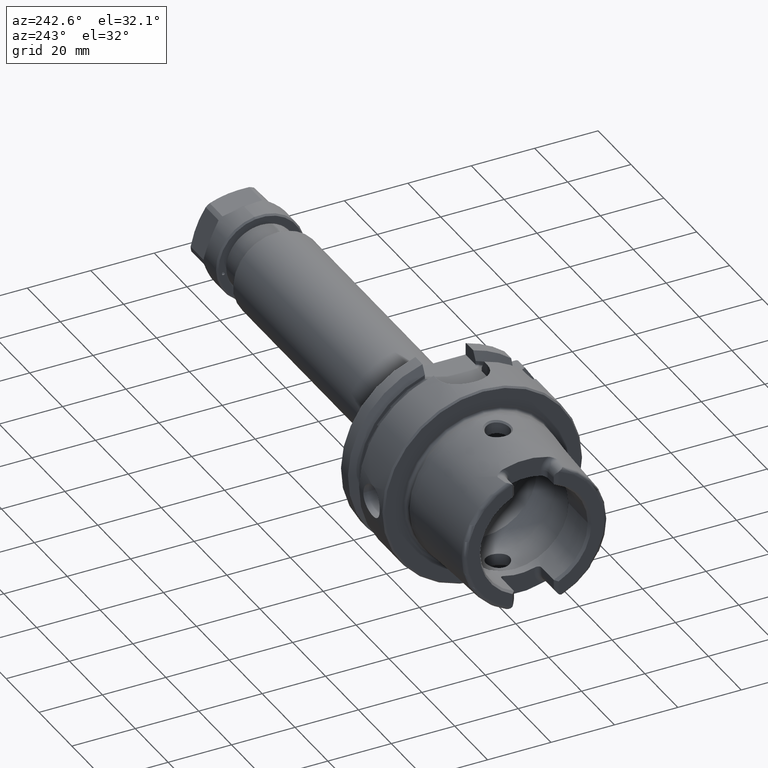
[diagram: clean part render]
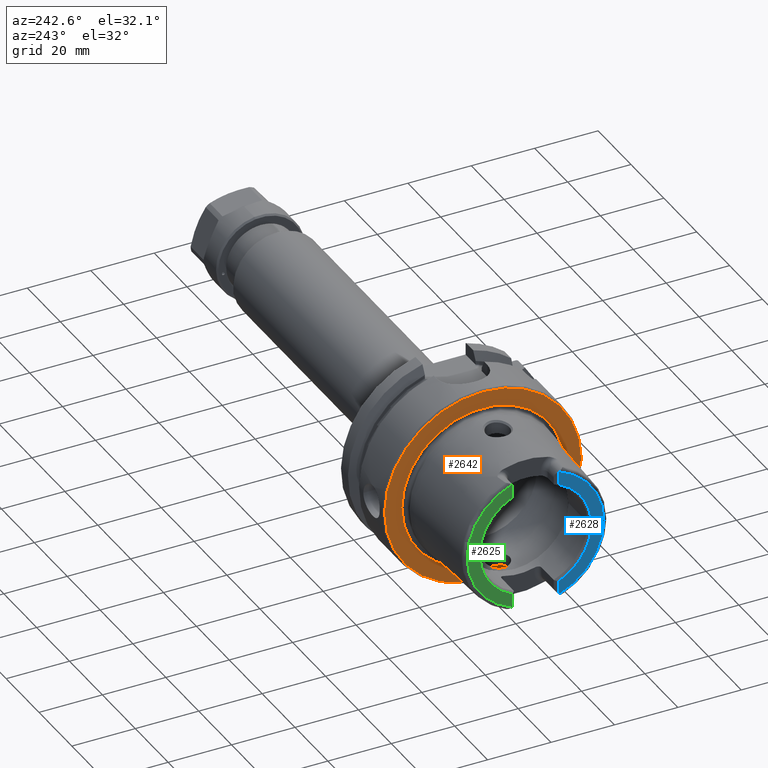
[diagram: same view with three faces highlighted in distinct colors, each labeled with its STEP entity id]
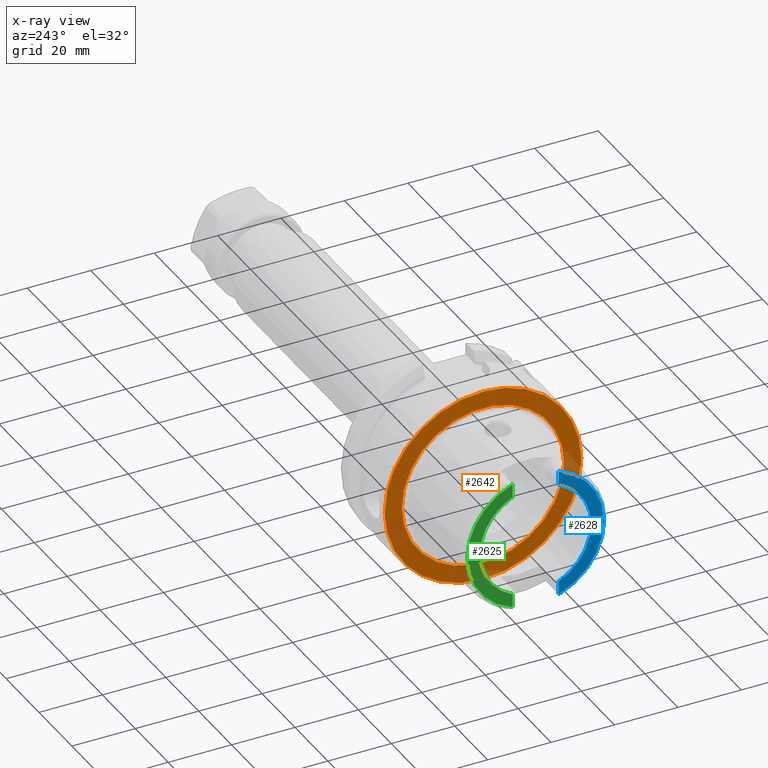
[diagram: x-ray of the same camera — body ghosted, the three highlighted faces saturated]
A machine part, auxiliary view with three faces highlighted in distinct colors.
The next image is the same camera in x-ray (body ghosted, the three faces saturated) — at least one of them is partly hidden behind the body in this view.
Their STEP definitions:

[orange] entity #2642 — the highlighted planar face has unit normal (-1, 0, 0).
#162=FACE_BOUND('',#530,.T.);
#210=PLANE('',#2992);
#366=FACE_OUTER_BOUND('',#529,.T.);
#529=EDGE_LOOP('',(#2302));
#530=EDGE_LOOP('',(#2303));
#991=CIRCLE('',#2991,25.5879092835167);
#992=CIRCLE('',#2993,31.);
#1228=VERTEX_POINT('',#5335);
#1229=VERTEX_POINT('',#5339);
#1596=EDGE_CURVE('',#1228,#1228,#991,.T.);
#1597=EDGE_CURVE('',#1229,#1229,#992,.T.);
#2302=ORIENTED_EDGE('',*,*,#1597,.F.);
#2303=ORIENTED_EDGE('',*,*,#1596,.T.);
#2642=ADVANCED_FACE('',(#366,#162),#210,.T.);
#2991=AXIS2_PLACEMENT_3D('',#5337,#3673,#3674);
#2992=AXIS2_PLACEMENT_3D('',#5338,#3675,#3676);
#2993=AXIS2_PLACEMENT_3D('',#5340,#3677,#3678);
#3673=DIRECTION('center_axis',(1.,0.,0.));
#3674=DIRECTION('ref_axis',(0.,0.,-1.));
#3675=DIRECTION('center_axis',(-1.,0.,0.));
#3676=DIRECTION('ref_axis',(0.,0.,1.));
#3677=DIRECTION('center_axis',(1.,0.,0.));
#3678=DIRECTION('ref_axis',(0.,0.,-1.));
#5335=CARTESIAN_POINT('',(-3.55618312575245E-16,-25.5879092835167,-3.13361512009315E-15));
#5337=CARTESIAN_POINT('Origin',(0.,0.,0.));
#5338=CARTESIAN_POINT('Origin',(0.,31.,0.));
#5339=CARTESIAN_POINT('',(-5.89805981832114E-16,-31.,-3.7964050773568E-15));
#5340=CARTESIAN_POINT('Origin',(0.,0.,0.));

[blue] entity #2628 — the highlighted planar face has unit normal (-1, 0, 0).
#206=PLANE('',#2959);
#352=FACE_OUTER_BOUND('',#512,.T.);
#512=EDGE_LOOP('',(#2238,#2239,#2240,#2241,#2242,#2243));
#592=LINE('',#3983,#738);
#605=LINE('',#4096,#751);
#738=VECTOR('',#3187,10.);
#751=VECTOR('',#3234,10.);
#896=CIRCLE('',#2796,2.88);
#900=CIRCLE('',#2811,2.88);
#973=CIRCLE('',#2960,21.5760400159857);
#974=CIRCLE('',#2961,17.5773502691896);
#1060=VERTEX_POINT('',#3980);
#1061=VERTEX_POINT('',#3982);
#1068=VERTEX_POINT('',#4015);
#1081=VERTEX_POINT('',#4089);
#1084=VERTEX_POINT('',#4094);
#1087=VERTEX_POINT('',#4104);
#1332=EDGE_CURVE('',#1060,#1061,#592,.T.);
#1341=EDGE_CURVE('',#1060,#1068,#896,.T.);
#1360=EDGE_CURVE('',#1084,#1081,#605,.T.);
#1364=EDGE_CURVE('',#1087,#1081,#900,.T.);
#1573=EDGE_CURVE('',#1087,#1068,#973,.T.);
#1574=EDGE_CURVE('',#1061,#1084,#974,.T.);
#2238=ORIENTED_EDGE('',*,*,#1332,.F.);
#2239=ORIENTED_EDGE('',*,*,#1341,.T.);
#2240=ORIENTED_EDGE('',*,*,#1573,.F.);
#2241=ORIENTED_EDGE('',*,*,#1364,.T.);
#2242=ORIENTED_EDGE('',*,*,#1360,.F.);
#2243=ORIENTED_EDGE('',*,*,#1574,.F.);
#2628=ADVANCED_FACE('',(#352),#206,.T.);
#2796=AXIS2_PLACEMENT_3D('',#4028,#3199,#3200);
#2811=AXIS2_PLACEMENT_3D('',#4105,#3242,#3243);
#2959=AXIS2_PLACEMENT_3D('',#5286,#3604,#3605);
#2960=AXIS2_PLACEMENT_3D('',#5287,#3606,#3607);
#2961=AXIS2_PLACEMENT_3D('',#5288,#3608,#3609);
#3187=DIRECTION('',(0.,0.,1.));
#3199=DIRECTION('center_axis',(-1.,0.,0.));
#3200=DIRECTION('ref_axis',(0.,-1.,0.));
#3234=DIRECTION('',(0.,1.58830189502884E-16,1.));
#3242=DIRECTION('center_axis',(-1.,0.,0.));
#3243=DIRECTION('ref_axis',(0.,0.453346760926795,-0.891334232685576));
#3604=DIRECTION('center_axis',(-1.,0.,0.));
#3605=DIRECTION('ref_axis',(0.,0.,1.));
#3606=DIRECTION('center_axis',(1.,0.,0.));
#3607=DIRECTION('ref_axis',(0.,0.,-1.));
#3608=DIRECTION('center_axis',(-1.,0.,0.));
#3609=DIRECTION('ref_axis',(0.,-1.,0.));
#3980=CARTESIAN_POINT('',(-32.,-7.27,-20.1717424229271));
#3982=CARTESIAN_POINT('',(-32.,-7.27,-16.003447831195));
#3983=CARTESIAN_POINT('',(-32.,-7.27,-8.995));
#4015=CARTESIAN_POINT('',(-32.,-7.39118810947246,-20.2705658801576));
#4028=CARTESIAN_POINT('Origin',(-32.,-9.15,-17.99));
#4089=CARTESIAN_POINT('',(-32.,-7.26999999999999,20.1717424229271));
#4094=CARTESIAN_POINT('',(-32.,-7.26999999999999,16.003447831195));
#4096=CARTESIAN_POINT('',(-32.,-7.27,5.5));
#4104=CARTESIAN_POINT('',(-32.,-7.39118810947246,20.2705658801576));
#4105=CARTESIAN_POINT('Origin',(-32.,-9.15,17.99));
#5286=CARTESIAN_POINT('Origin',(-32.,21.5760400159857,0.));
#5287=CARTESIAN_POINT('Origin',(-32.,0.,0.));
#5288=CARTESIAN_POINT('Origin',(-32.,0.,0.));

[green] entity #2625 — the highlighted planar face has unit normal (-1, 0, 0).
#204=PLANE('',#2955);
#349=FACE_OUTER_BOUND('',#509,.T.);
#509=EDGE_LOOP('',(#2225,#2226,#2227,#2228,#2229,#2230));
#599=LINE('',#4041,#745);
#609=LINE('',#4134,#755);
#745=VECTOR('',#3212,10.);
#755=VECTOR('',#3250,10.);
#897=CIRCLE('',#2803,2.88);
#903=CIRCLE('',#2818,2.88);
#971=CIRCLE('',#2954,17.5773502691896);
#972=CIRCLE('',#2956,21.5760400159857);
#1070=VERTEX_POINT('',#4034);
#1073=VERTEX_POINT('',#4039);
#1076=VERTEX_POINT('',#4049);
#1091=VERTEX_POINT('',#4131);
#1092=VERTEX_POINT('',#4133);
#1097=VERTEX_POINT('',#4152);
#1347=EDGE_CURVE('',#1073,#1070,#599,.T.);
#1351=EDGE_CURVE('',#1076,#1070,#897,.T.);
#1369=EDGE_CURVE('',#1091,#1092,#609,.T.);
#1376=EDGE_CURVE('',#1091,#1097,#903,.T.);
#1571=EDGE_CURVE('',#1092,#1073,#971,.T.);
#1572=EDGE_CURVE('',#1076,#1097,#972,.T.);
#2225=ORIENTED_EDGE('',*,*,#1347,.F.);
#2226=ORIENTED_EDGE('',*,*,#1571,.F.);
#2227=ORIENTED_EDGE('',*,*,#1369,.F.);
#2228=ORIENTED_EDGE('',*,*,#1376,.T.);
#2229=ORIENTED_EDGE('',*,*,#1572,.F.);
#2230=ORIENTED_EDGE('',*,*,#1351,.T.);
#2625=ADVANCED_FACE('',(#349),#204,.T.);
#2803=AXIS2_PLACEMENT_3D('',#4050,#3220,#3221);
#2818=AXIS2_PLACEMENT_3D('',#4165,#3259,#3260);
#2954=AXIS2_PLACEMENT_3D('',#5281,#3594,#3595);
#2955=AXIS2_PLACEMENT_3D('',#5282,#3596,#3597);
#2956=AXIS2_PLACEMENT_3D('',#5283,#3598,#3599);
#3212=DIRECTION('',(0.,0.,-1.));
#3220=DIRECTION('center_axis',(-1.,0.,0.));
#3221=DIRECTION('ref_axis',(0.,-0.453346760926793,0.891334232685576));
#3250=DIRECTION('',(0.,1.58830189502884E-16,-1.));
#3259=DIRECTION('center_axis',(-1.,0.,0.));
#3260=DIRECTION('ref_axis',(0.,1.,0.));
#3594=DIRECTION('center_axis',(-1.,0.,0.));
#3595=DIRECTION('ref_axis',(0.,-1.,0.));
#3596=DIRECTION('center_axis',(-1.,0.,0.));
#3597=DIRECTION('ref_axis',(0.,0.,1.));
#3598=DIRECTION('center_axis',(1.,0.,0.));
#3599=DIRECTION('ref_axis',(0.,0.,-1.));
#4034=CARTESIAN_POINT('',(-32.,7.27,-20.1717424229271));
#4039=CARTESIAN_POINT('',(-32.,7.27,-16.003447831195));
#4041=CARTESIAN_POINT('',(-32.,7.27,-5.5));
#4049=CARTESIAN_POINT('',(-32.,7.39118810947246,-20.2705658801576));
#4050=CARTESIAN_POINT('Origin',(-32.,9.15,-17.99));
#4131=CARTESIAN_POINT('',(-32.,7.27,20.1717424229271));
#4133=CARTESIAN_POINT('',(-32.,7.27,16.003447831195));
#4134=CARTESIAN_POINT('',(-32.,7.27,8.995));
#4152=CARTESIAN_POINT('',(-32.,7.39118810947246,20.2705658801576));
#4165=CARTESIAN_POINT('Origin',(-32.,9.15,17.99));
#5281=CARTESIAN_POINT('Origin',(-32.,0.,0.));
#5282=CARTESIAN_POINT('Origin',(-32.,21.5760400159857,0.));
#5283=CARTESIAN_POINT('Origin',(-32.,0.,0.));